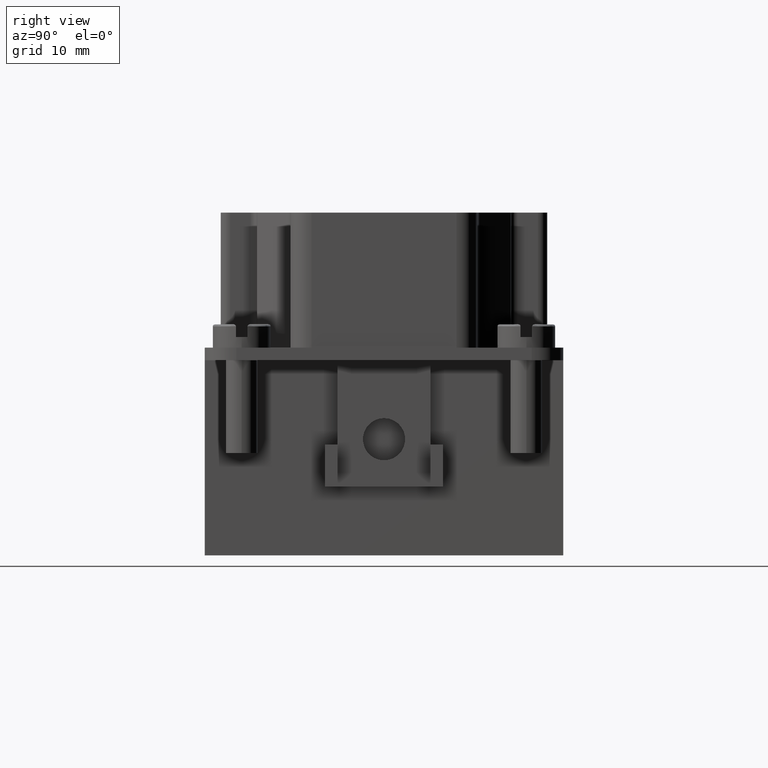
[diagram: clean part render]
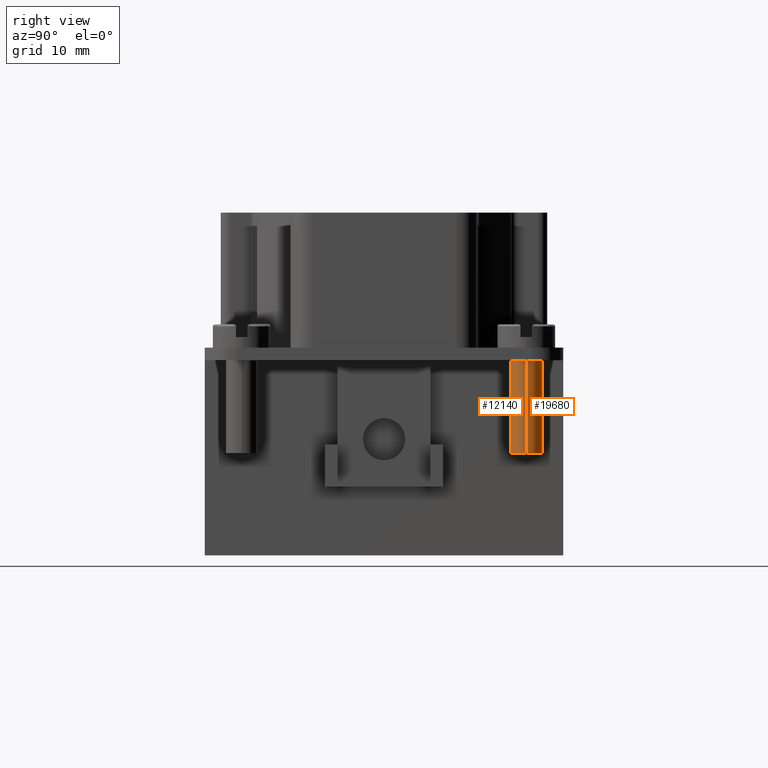
[diagram: same view with one multi-face feature highlighted, each face labeled with its STEP entity id]
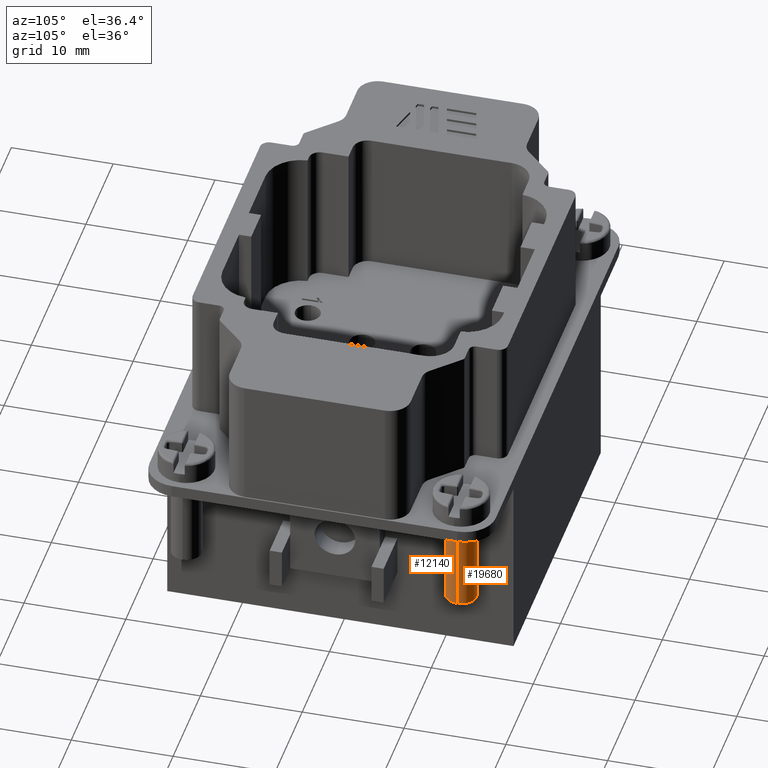
[diagram: same view with one multi-face feature highlighted, each face labeled with its STEP entity id]
A machine part, right view. The highlighted faces form ONE feature: a constant-radius fillet chain: 2 tangent blend faces with common blend radius 1.5 mm. The faces share edges in the B-rep.
A second angle (auxiliary view) of the same feature is appended — it is thin or edge-on in the first view.
Their STEP definitions:
[1] entity #12140 (Cylinder):
#599 = CARTESIAN_POINT ( 'NONE',  ( 0.8661417322834645827, 0.5314960629921693380, -0.8976377952755983936 ) ) ;
#693 = DIRECTION ( 'NONE',  ( 0.000000000000000000, 0.000000000000000000, 1.000000000000000000 ) ) ;
#862 = DIRECTION ( 'NONE',  ( 0.000000000000000000, 0.000000000000000000, 1.000000000000000000 ) ) ;
#959 = CARTESIAN_POINT ( 'NONE',  ( 0.9251968503937008093, 0.5314960629921693380, -0.5511811023622047445 ) ) ;
#1391 = DIRECTION ( 'NONE',  ( 1.000000000000000000, 0.000000000000000000, 0.000000000000000000 ) ) ;
#1402 = AXIS2_PLACEMENT_3D ( 'NONE', #19031, #3052, #1391 ) ;
#1559 = CARTESIAN_POINT ( 'NONE',  ( 0.8070866141732282451, 0.5314960629921693380, -0.8976377952755983936 ) ) ;
#1572 = LINE ( 'NONE', #9925, #6143 ) ;
#2635 = CARTESIAN_POINT ( 'NONE',  ( 0.8661417322834645827, 0.5314960629921693380, -0.8976377952755983936 ) ) ;
#3052 = DIRECTION ( 'NONE',  ( 0.000000000000000000, 0.000000000000000000, 1.000000000000000000 ) ) ;
#3078 = CIRCLE ( 'NONE', #3419, 0.05905511811023627516 ) ;
#3419 = AXIS2_PLACEMENT_3D ( 'NONE', #599, #693, #5501 ) ;
#3511 = VERTEX_POINT ( 'NONE', #8880 ) ;
#4097 = EDGE_CURVE ( 'NONE', #3511, #6952, #19397, .T. ) ;
#4581 = CARTESIAN_POINT ( 'NONE',  ( 0.9251968503937008093, 0.5314960629921693380, -0.8976377952755983936 ) ) ;
#5204 = VERTEX_POINT ( 'NONE', #1559 ) ;
#5480 = EDGE_CURVE ( 'NONE', #5204, #19059, #3078, .T. ) ;
#5501 = DIRECTION ( 'NONE',  ( 1.000000000000000000, 0.000000000000000000, 0.000000000000000000 ) ) ;
#6143 = VECTOR ( 'NONE', #19401, 39.37007874015748143 ) ;
#6952 = VERTEX_POINT ( 'NONE', #959 ) ;
#6978 = EDGE_LOOP ( 'NONE', ( #19275, #16946, #15073, #13600 ) ) ;
#7244 = FACE_OUTER_BOUND ( 'NONE', #6978, .T. ) ;
#8880 = CARTESIAN_POINT ( 'NONE',  ( 0.8070866141732282451, 0.5314960629921693380, -0.5511811023622047445 ) ) ;
#9131 = CARTESIAN_POINT ( 'NONE',  ( 0.9251968503937008093, 0.5314960629921693380, -0.8976377952755983936 ) ) ;
#9206 = VECTOR ( 'NONE', #10796, 39.37007874015748143 ) ;
#9265 = EDGE_CURVE ( 'NONE', #5204, #3511, #1572, .T. ) ;
#9925 = CARTESIAN_POINT ( 'NONE',  ( 0.8070866141732282451, 0.5314960629921693380, -0.8976377952755983936 ) ) ;
#10688 = DIRECTION ( 'NONE',  ( 1.000000000000000000, 0.000000000000000000, 0.000000000000000000 ) ) ;
#10796 = DIRECTION ( 'NONE',  ( 0.000000000000000000, 0.000000000000000000, 1.000000000000000000 ) ) ;
#12140 = ADVANCED_FACE ( 'NONE', ( #7244 ), #13608, .T. ) ;
#13600 = ORIENTED_EDGE ( 'NONE', *, *, #4097, .F. ) ;
#13608 = CYLINDRICAL_SURFACE ( 'NONE', #20135, 0.05905511811023627516 ) ;
#15073 = ORIENTED_EDGE ( 'NONE', *, *, #18560, .T. ) ;
#16946 = ORIENTED_EDGE ( 'NONE', *, *, #5480, .T. ) ;
#17164 = LINE ( 'NONE', #9131, #9206 ) ;
#18560 = EDGE_CURVE ( 'NONE', #19059, #6952, #17164, .T. ) ;
#19031 = CARTESIAN_POINT ( 'NONE',  ( 0.8661417322834645827, 0.5314960629921693380, -0.5511811023622047445 ) ) ;
#19059 = VERTEX_POINT ( 'NONE', #4581 ) ;
#19275 = ORIENTED_EDGE ( 'NONE', *, *, #9265, .F. ) ;
#19397 = CIRCLE ( 'NONE', #1402, 0.05905511811023627516 ) ;
#19401 = DIRECTION ( 'NONE',  ( 0.000000000000000000, 0.000000000000000000, 1.000000000000000000 ) ) ;
#20135 = AXIS2_PLACEMENT_3D ( 'NONE', #2635, #862, #10688 ) ;
[2] entity #19680 (Cylinder):
#878 = EDGE_LOOP ( 'NONE', ( #6185, #3072, #10585, #17229 ) ) ;
#959 = CARTESIAN_POINT ( 'NONE',  ( 0.9251968503937008093, 0.5314960629921693380, -0.5511811023622047445 ) ) ;
#1559 = CARTESIAN_POINT ( 'NONE',  ( 0.8070866141732282451, 0.5314960629921693380, -0.8976377952755983936 ) ) ;
#1572 = LINE ( 'NONE', #9925, #6143 ) ;
#2405 = FACE_OUTER_BOUND ( 'NONE', #878, .T. ) ;
#2886 = AXIS2_PLACEMENT_3D ( 'NONE', #16829, #15578, #20162 ) ;
#2891 = DIRECTION ( 'NONE',  ( 0.000000000000000000, 0.000000000000000000, 1.000000000000000000 ) ) ;
#3072 = ORIENTED_EDGE ( 'NONE', *, *, #9265, .T. ) ;
#3202 = EDGE_CURVE ( 'NONE', #19059, #5204, #13715, .T. ) ;
#3511 = VERTEX_POINT ( 'NONE', #8880 ) ;
#4000 = CARTESIAN_POINT ( 'NONE',  ( 0.8661417322834645827, 0.5314960629921693380, -0.8976377952755983936 ) ) ;
#4150 = AXIS2_PLACEMENT_3D ( 'NONE', #12195, #2891, #7386 ) ;
#4581 = CARTESIAN_POINT ( 'NONE',  ( 0.9251968503937008093, 0.5314960629921693380, -0.8976377952755983936 ) ) ;
#5204 = VERTEX_POINT ( 'NONE', #1559 ) ;
#6143 = VECTOR ( 'NONE', #19401, 39.37007874015748143 ) ;
#6185 = ORIENTED_EDGE ( 'NONE', *, *, #3202, .T. ) ;
#6952 = VERTEX_POINT ( 'NONE', #959 ) ;
#7386 = DIRECTION ( 'NONE',  ( 1.000000000000000000, 0.000000000000000000, 0.000000000000000000 ) ) ;
#8880 = CARTESIAN_POINT ( 'NONE',  ( 0.8070866141732282451, 0.5314960629921693380, -0.5511811023622047445 ) ) ;
#9131 = CARTESIAN_POINT ( 'NONE',  ( 0.9251968503937008093, 0.5314960629921693380, -0.8976377952755983936 ) ) ;
#9206 = VECTOR ( 'NONE', #10796, 39.37007874015748143 ) ;
#9265 = EDGE_CURVE ( 'NONE', #5204, #3511, #1572, .T. ) ;
#9925 = CARTESIAN_POINT ( 'NONE',  ( 0.8070866141732282451, 0.5314960629921693380, -0.8976377952755983936 ) ) ;
#10463 = CYLINDRICAL_SURFACE ( 'NONE', #2886, 0.05905511811023627516 ) ;
#10532 = EDGE_CURVE ( 'NONE', #6952, #3511, #16499, .T. ) ;
#10585 = ORIENTED_EDGE ( 'NONE', *, *, #10532, .F. ) ;
#10701 = DIRECTION ( 'NONE',  ( 0.000000000000000000, 0.000000000000000000, 1.000000000000000000 ) ) ;
#10796 = DIRECTION ( 'NONE',  ( 0.000000000000000000, 0.000000000000000000, 1.000000000000000000 ) ) ;
#11853 = DIRECTION ( 'NONE',  ( 1.000000000000000000, 0.000000000000000000, 0.000000000000000000 ) ) ;
#12195 = CARTESIAN_POINT ( 'NONE',  ( 0.8661417322834645827, 0.5314960629921693380, -0.5511811023622047445 ) ) ;
#13715 = CIRCLE ( 'NONE', #14067, 0.05905511811023627516 ) ;
#14067 = AXIS2_PLACEMENT_3D ( 'NONE', #4000, #10701, #11853 ) ;
#15578 = DIRECTION ( 'NONE',  ( 0.000000000000000000, 0.000000000000000000, 1.000000000000000000 ) ) ;
#16499 = CIRCLE ( 'NONE', #4150, 0.05905511811023627516 ) ;
#16829 = CARTESIAN_POINT ( 'NONE',  ( 0.8661417322834645827, 0.5314960629921693380, -0.8976377952755983936 ) ) ;
#17164 = LINE ( 'NONE', #9131, #9206 ) ;
#17229 = ORIENTED_EDGE ( 'NONE', *, *, #18560, .F. ) ;
#18560 = EDGE_CURVE ( 'NONE', #19059, #6952, #17164, .T. ) ;
#19059 = VERTEX_POINT ( 'NONE', #4581 ) ;
#19401 = DIRECTION ( 'NONE',  ( 0.000000000000000000, 0.000000000000000000, 1.000000000000000000 ) ) ;
#19680 = ADVANCED_FACE ( 'NONE', ( #2405 ), #10463, .T. ) ;
#20162 = DIRECTION ( 'NONE',  ( 1.000000000000000000, 0.000000000000000000, 0.000000000000000000 ) ) ;